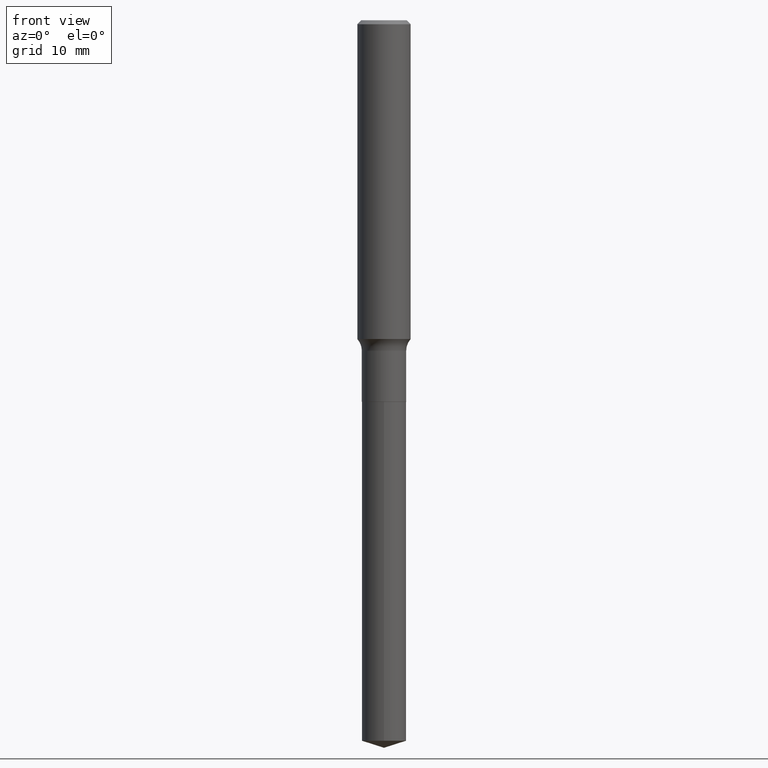
[diagram: clean part render]
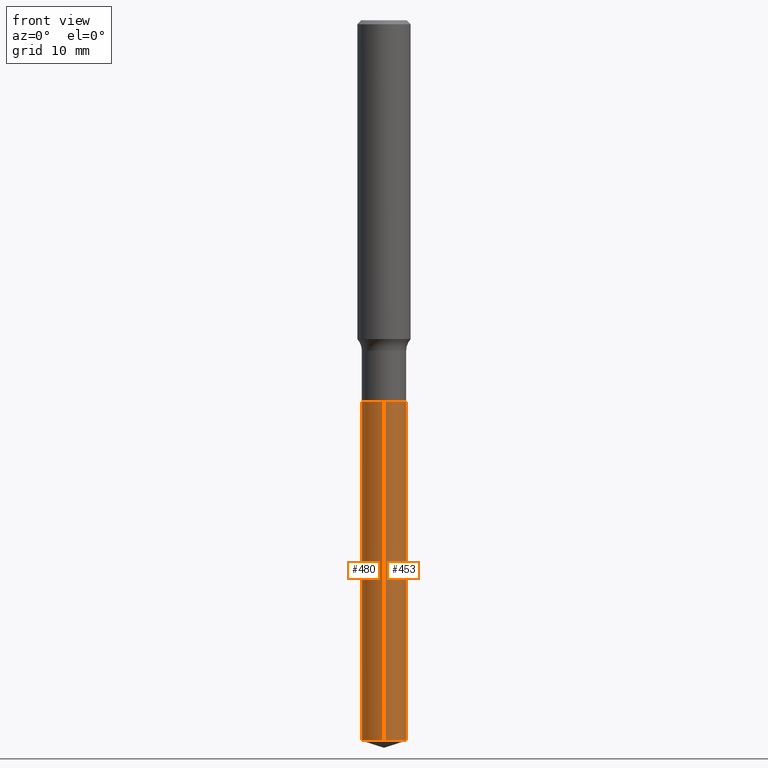
[diagram: same view with one multi-face feature highlighted, each face labeled with its STEP entity id]
A machine part, front view. The highlighted faces form ONE feature: a constant-radius fillet chain: 2 tangent blend faces with common blend radius 2.5006 mm. The faces share edges in the B-rep.
Their STEP definitions:
[1] entity #480 (Cylinder):
#17 = CYLINDRICAL_SURFACE ( 'NONE', #68, 0.09844999999999999585 ) ;
#32 = DIRECTION ( 'NONE',  ( -2.445514466918933997E-29, 3.491415950073500322E-15, 1.000000000000000000 ) ) ;
#39 = CARTESIAN_POINT ( 'NONE',  ( -6.874726756181714407E-16, -0.09845000000000590779, -1.692899999999999849 ) ) ;
#61 = ORIENTED_EDGE ( 'NONE', *, *, #62, .T. ) ;
#62 = EDGE_CURVE ( 'NONE', #120, #485, #223, .T. ) ;
#68 = AXIS2_PLACEMENT_3D ( 'NONE', #275, #438, #434 ) ;
#108 = DIRECTION ( 'NONE',  ( -2.445514466918933997E-29, 3.491415950073500322E-15, 1.000000000000000000 ) ) ;
#120 = VERTEX_POINT ( 'NONE', #335 ) ;
#133 = EDGE_CURVE ( 'NONE', #379, #354, #151, .T. ) ;
#144 = EDGE_CURVE ( 'NONE', #354, #485, #327, .T. ) ;
#146 = CARTESIAN_POINT ( 'NONE',  ( 7.818865434549479088E-29, -1.116307118700914191E-14, -3.197258834234863567 ) ) ;
#151 = LINE ( 'NONE', #230, #388 ) ;
#157 = DIRECTION ( 'NONE',  ( -6.982962677686265922E-15, -1.000000000000000000, 2.774858297271979165E-15 ) ) ;
#188 = DIRECTION ( 'NONE',  ( -2.445514466918933997E-29, 3.491415950073500322E-15, 1.000000000000000000 ) ) ;
#190 = DIRECTION ( 'NONE',  ( -2.445514466918933997E-29, 3.491415950073500322E-15, 1.000000000000000000 ) ) ;
#223 = LINE ( 'NONE', #39, #331 ) ;
#230 = CARTESIAN_POINT ( 'NONE',  ( 6.995293233558598215E-16, 0.09844999999999408391, -1.692900000000000293 ) ) ;
#237 = AXIS2_PLACEMENT_3D ( 'NONE', #345, #188, #157 ) ;
#239 = CARTESIAN_POINT ( 'NONE',  ( 6.995293233558967993E-16, 0.09844999999999408391, -1.692900000000000293 ) ) ;
#265 = DIRECTION ( 'NONE',  ( -6.982962677686265922E-15, -1.000000000000000000, 5.549716594543958330E-15 ) ) ;
#275 = CARTESIAN_POINT ( 'NONE',  ( 4.139934141990818357E-29, -5.910728758527561864E-15, -1.692900000000000071 ) ) ;
#313 = ORIENTED_EDGE ( 'NONE', *, *, #144, .F. ) ;
#317 = EDGE_CURVE ( 'NONE', #379, #120, #431, .T. ) ;
#326 = FACE_OUTER_BOUND ( 'NONE', #400, .T. ) ;
#327 = CIRCLE ( 'NONE', #237, 0.09844999999999999585 ) ;
#331 = VECTOR ( 'NONE', #32, 39.37007874015748143 ) ;
#335 = CARTESIAN_POINT ( 'NONE',  ( -6.874726756181345614E-16, -0.09845000000001113971, -3.197258834234863123 ) ) ;
#345 = CARTESIAN_POINT ( 'NONE',  ( 4.139934141990818357E-29, -5.910728758527561864E-15, -1.692900000000000071 ) ) ;
#354 = VERTEX_POINT ( 'NONE', #239 ) ;
#379 = VERTEX_POINT ( 'NONE', #401 ) ;
#388 = VECTOR ( 'NONE', #190, 39.37007874015748143 ) ;
#395 = AXIS2_PLACEMENT_3D ( 'NONE', #146, #108, #265 ) ;
#400 = EDGE_LOOP ( 'NONE', ( #441, #479, #61, #313 ) ) ;
#401 = CARTESIAN_POINT ( 'NONE',  ( 6.995293233558965035E-16, 0.09844999999998881035, -3.197258834234864011 ) ) ;
#431 = CIRCLE ( 'NONE', #395, 0.09844999999999999585 ) ;
#434 = DIRECTION ( 'NONE',  ( -6.982962677686265922E-15, -1.000000000000000000, 2.774858297271979165E-15 ) ) ;
#438 = DIRECTION ( 'NONE',  ( -2.445514466918933997E-29, 3.491415950073500322E-15, 1.000000000000000000 ) ) ;
#441 = ORIENTED_EDGE ( 'NONE', *, *, #133, .F. ) ;
#454 = CARTESIAN_POINT ( 'NONE',  ( -6.874726756181714407E-16, -0.09845000000000590779, -1.692899999999999849 ) ) ;
#479 = ORIENTED_EDGE ( 'NONE', *, *, #317, .T. ) ;
#480 = ADVANCED_FACE ( 'NONE', ( #326 ), #17, .T. ) ;
#485 = VERTEX_POINT ( 'NONE', #454 ) ;
[2] entity #453 (Cylinder):
#3 = DIRECTION ( 'NONE',  ( -6.982962677686265922E-15, -1.000000000000000000, 2.774858297271979165E-15 ) ) ;
#32 = DIRECTION ( 'NONE',  ( -2.445514466918933997E-29, 3.491415950073500322E-15, 1.000000000000000000 ) ) ;
#38 = EDGE_CURVE ( 'NONE', #120, #379, #174, .T. ) ;
#39 = CARTESIAN_POINT ( 'NONE',  ( -6.874726756181714407E-16, -0.09845000000000590779, -1.692899999999999849 ) ) ;
#62 = EDGE_CURVE ( 'NONE', #120, #485, #223, .T. ) ;
#80 = DIRECTION ( 'NONE',  ( -2.445514466918933997E-29, 3.491415950073500322E-15, 1.000000000000000000 ) ) ;
#88 = FACE_OUTER_BOUND ( 'NONE', #411, .T. ) ;
#117 = DIRECTION ( 'NONE',  ( -2.445514466918933997E-29, 3.491415950073500322E-15, 1.000000000000000000 ) ) ;
#120 = VERTEX_POINT ( 'NONE', #335 ) ;
#126 = ORIENTED_EDGE ( 'NONE', *, *, #292, .F. ) ;
#133 = EDGE_CURVE ( 'NONE', #379, #354, #151, .T. ) ;
#143 = ORIENTED_EDGE ( 'NONE', *, *, #133, .T. ) ;
#145 = CARTESIAN_POINT ( 'NONE',  ( 7.818865434549479088E-29, -1.116307118700914191E-14, -3.197258834234863567 ) ) ;
#151 = LINE ( 'NONE', #230, #388 ) ;
#174 = CIRCLE ( 'NONE', #210, 0.09844999999999999585 ) ;
#190 = DIRECTION ( 'NONE',  ( -2.445514466918933997E-29, 3.491415950073500322E-15, 1.000000000000000000 ) ) ;
#210 = AXIS2_PLACEMENT_3D ( 'NONE', #145, #80, #460 ) ;
#216 = AXIS2_PLACEMENT_3D ( 'NONE', #278, #358, #471 ) ;
#223 = LINE ( 'NONE', #39, #331 ) ;
#230 = CARTESIAN_POINT ( 'NONE',  ( 6.995293233558598215E-16, 0.09844999999999408391, -1.692900000000000293 ) ) ;
#239 = CARTESIAN_POINT ( 'NONE',  ( 6.995293233558967993E-16, 0.09844999999999408391, -1.692900000000000293 ) ) ;
#240 = CYLINDRICAL_SURFACE ( 'NONE', #216, 0.09844999999999999585 ) ;
#243 = CIRCLE ( 'NONE', #320, 0.09844999999999999585 ) ;
#278 = CARTESIAN_POINT ( 'NONE',  ( 4.139934141990818357E-29, -5.910728758527561864E-15, -1.692900000000000071 ) ) ;
#292 = EDGE_CURVE ( 'NONE', #485, #354, #243, .T. ) ;
#320 = AXIS2_PLACEMENT_3D ( 'NONE', #459, #117, #3 ) ;
#331 = VECTOR ( 'NONE', #32, 39.37007874015748143 ) ;
#335 = CARTESIAN_POINT ( 'NONE',  ( -6.874726756181345614E-16, -0.09845000000001113971, -3.197258834234863123 ) ) ;
#354 = VERTEX_POINT ( 'NONE', #239 ) ;
#358 = DIRECTION ( 'NONE',  ( -2.445514466918933997E-29, 3.491415950073500322E-15, 1.000000000000000000 ) ) ;
#364 = ORIENTED_EDGE ( 'NONE', *, *, #62, .F. ) ;
#379 = VERTEX_POINT ( 'NONE', #401 ) ;
#388 = VECTOR ( 'NONE', #190, 39.37007874015748143 ) ;
#401 = CARTESIAN_POINT ( 'NONE',  ( 6.995293233558965035E-16, 0.09844999999998881035, -3.197258834234864011 ) ) ;
#411 = EDGE_LOOP ( 'NONE', ( #451, #143, #126, #364 ) ) ;
#451 = ORIENTED_EDGE ( 'NONE', *, *, #38, .T. ) ;
#453 = ADVANCED_FACE ( 'NONE', ( #88 ), #240, .T. ) ;
#454 = CARTESIAN_POINT ( 'NONE',  ( -6.874726756181714407E-16, -0.09845000000000590779, -1.692899999999999849 ) ) ;
#459 = CARTESIAN_POINT ( 'NONE',  ( 4.139934141990818357E-29, -5.910728758527561864E-15, -1.692900000000000071 ) ) ;
#460 = DIRECTION ( 'NONE',  ( -6.982962677686265922E-15, -1.000000000000000000, 5.549716594543958330E-15 ) ) ;
#471 = DIRECTION ( 'NONE',  ( -6.982962677686265922E-15, -1.000000000000000000, 2.774858297271979165E-15 ) ) ;
#485 = VERTEX_POINT ( 'NONE', #454 ) ;